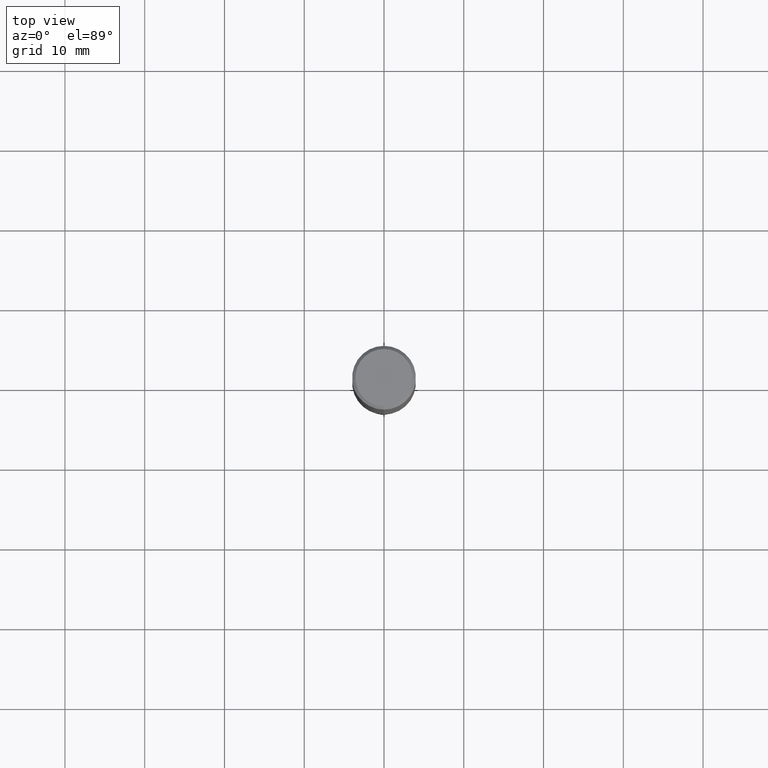
[diagram: clean part render]
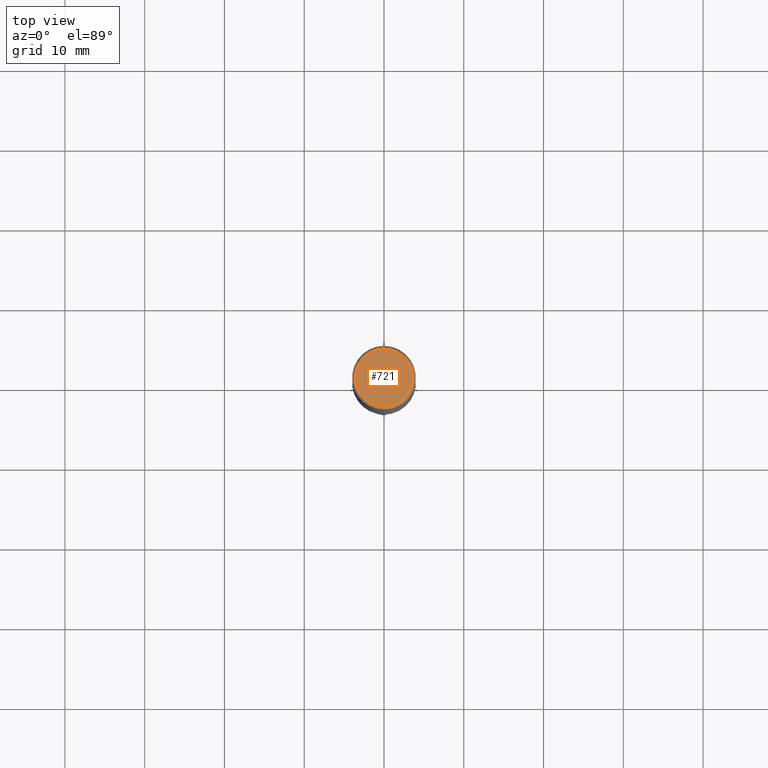
[diagram: same view with one face highlighted and labeled with its STEP entity id]
A machine part, top view. The second image highlights one B-rep face of the part: STEP entity #721.
In plain terms, the highlighted planar face has unit normal (-0, 0, 1).
Its self-contained STEP definition (entity closure, byte-faithful):
#335=VERTEX_POINT('',#893);
#617=VERTEX_POINT('',#1208);
#697=EDGE_CURVE('',#335,#617,#1291,.T.);
#721=ADVANCED_FACE('',(#1317),#1318,.T.);
#781=EDGE_CURVE('',#617,#335,#1382,.T.);
#893=CARTESIAN_POINT('',(4.40858287376056E-016,-3.6,0.0));
#1208=CARTESIAN_POINT('',(0.0,3.6,0.0));
#1291=CIRCLE('',#9052,3.6);
#1317=FACE_OUTER_BOUND('',#10058,.T.);
#1318=PLANE('',#10059);
#1382=CIRCLE('',#11167,3.6);
#9052=AXIS2_PLACEMENT_3D('',#12109,#12110,#12111);
#10058=EDGE_LOOP('',(#12142,#12143));
#10059=AXIS2_PLACEMENT_3D('',#12144,#12145,#12146);
#11167=AXIS2_PLACEMENT_3D('',#12198,#12199,#12200);
#12109=CARTESIAN_POINT('',(0.0,0.0,0.0));
#12110=DIRECTION('',(0.0,0.0,-1.0));
#12111=DIRECTION('',(0.0,1.0,0.0));
#12142=ORIENTED_EDGE('',*,*,#781,.F.);
#12143=ORIENTED_EDGE('',*,*,#697,.F.);
#12144=CARTESIAN_POINT('',(0.0,1.8,0.0));
#12145=DIRECTION('',(-0.0,0.0,1.0));
#12146=DIRECTION('',(0.0,-1.0,0.0));
#12198=CARTESIAN_POINT('',(0.0,0.0,0.0));
#12199=DIRECTION('',(0.0,0.0,-1.0));
#12200=DIRECTION('',(0.0,1.0,0.0));